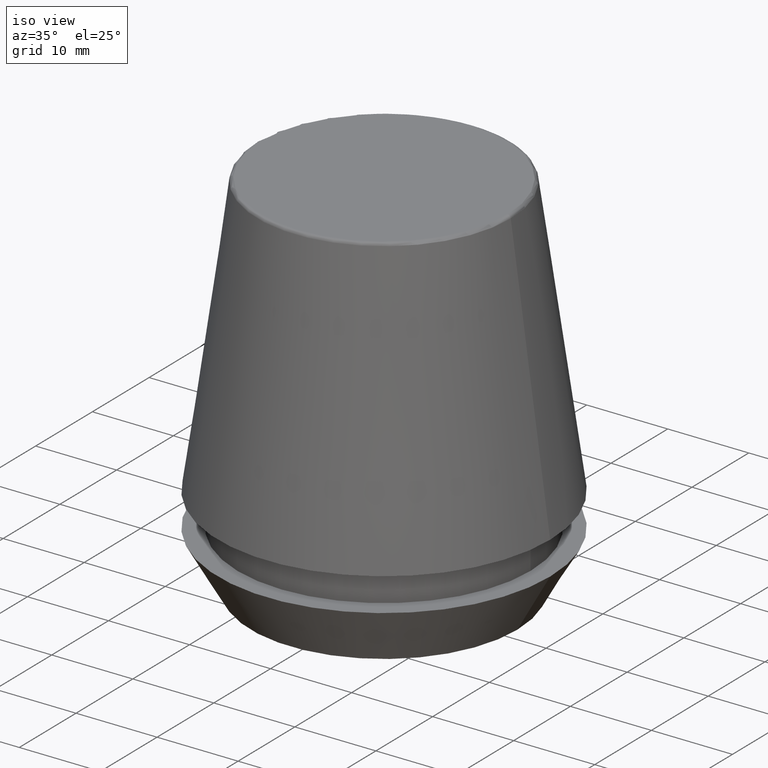
[diagram: clean part render]
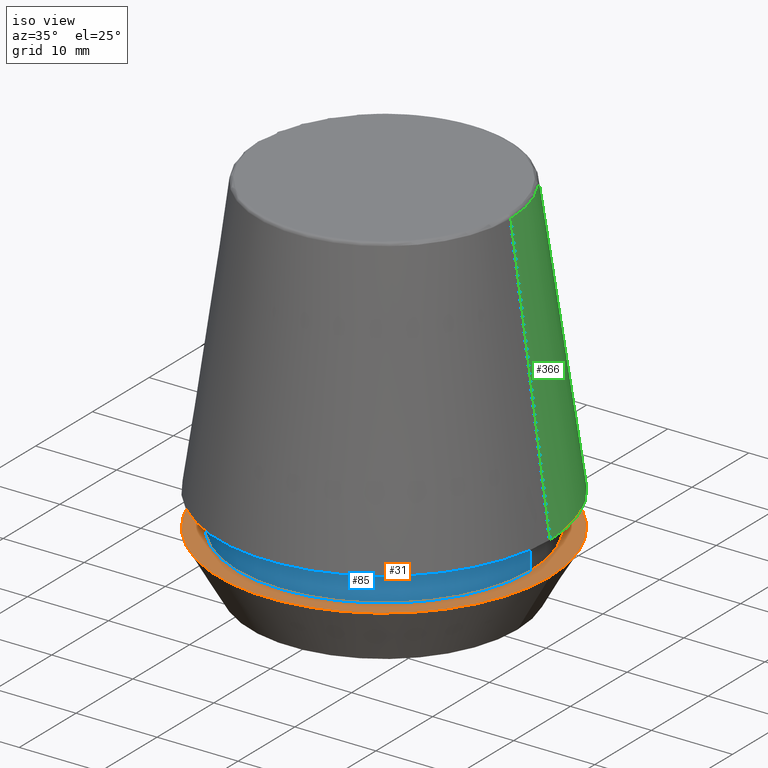
[diagram: same view with three faces highlighted in distinct colors, each labeled with its STEP entity id]
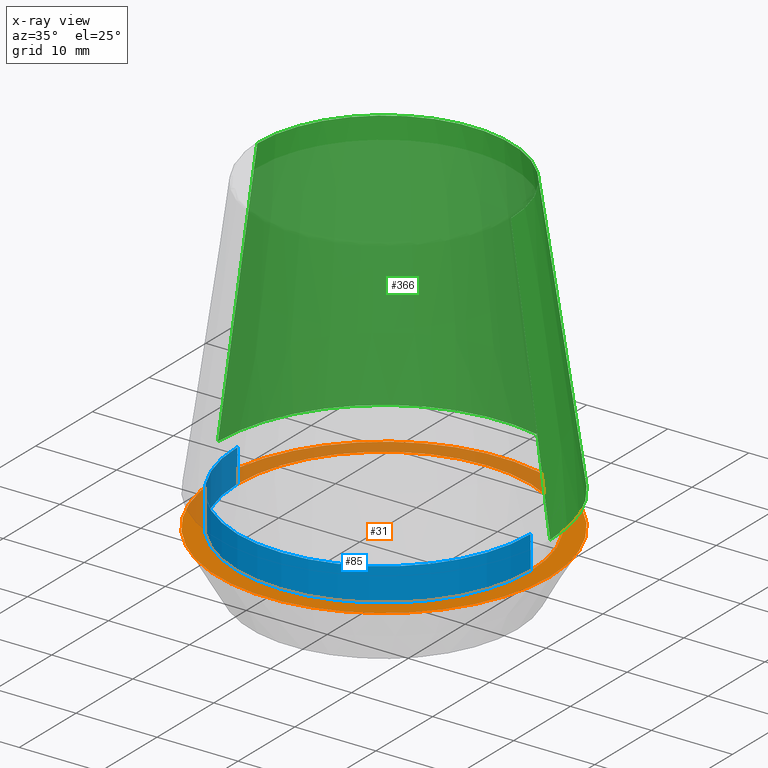
[diagram: x-ray of the same camera — body ghosted, the three highlighted faces saturated]
A machine part, iso view with three faces highlighted in distinct colors.
The next image is the same camera in x-ray (body ghosted, the three faces saturated) — at least one of them is partly hidden behind the body in this view.
Their STEP definitions:

[orange] entity #31 — the highlighted planar face has unit normal (0, 0, -1).
#6 = CIRCLE ( 'NONE', #50, 20.50000000000000000 ) ;
#18 = VERTEX_POINT ( 'NONE', #240 ) ;
#20 = DIRECTION ( 'NONE',  ( -1.000000000000000000, 0.0000000000000000000, -0.0000000000000000000 ) ) ;
#23 = AXIS2_PLACEMENT_3D ( 'NONE', #254, #378, #20 ) ;
#25 = DIRECTION ( 'NONE',  ( -0.0000000000000000000, -0.0000000000000000000, 1.000000000000000000 ) ) ;
#31 = ADVANCED_FACE ( 'NONE', ( #189, #213 ), #173, .F. ) ;
#34 = ORIENTED_EDGE ( 'NONE', *, *, #56, .T. ) ;
#41 = CARTESIAN_POINT ( 'NONE',  ( 0.0000000000000000000, 0.0000000000000000000, 6.999999999999999100 ) ) ;
#50 = AXIS2_PLACEMENT_3D ( 'NONE', #252, #92, #291 ) ;
#56 = EDGE_CURVE ( 'NONE', #80, #18, #6, .T. ) ;
#65 = ORIENTED_EDGE ( 'NONE', *, *, #257, .F. ) ;
#75 = DIRECTION ( 'NONE',  ( -0.0000000000000000000, -0.0000000000000000000, 1.000000000000000000 ) ) ;
#80 = VERTEX_POINT ( 'NONE', #375 ) ;
#88 = CARTESIAN_POINT ( 'NONE',  ( 0.0000000000000000000, 0.0000000000000000000, 6.999999999999999100 ) ) ;
#92 = DIRECTION ( 'NONE',  ( -0.0000000000000000000, -0.0000000000000000000, 1.000000000000000000 ) ) ;
#109 = VERTEX_POINT ( 'NONE', #335 ) ;
#111 = DIRECTION ( 'NONE',  ( 1.000000000000000000, 0.0000000000000000000, 0.0000000000000000000 ) ) ;
#116 = DIRECTION ( 'NONE',  ( -0.0000000000000000000, -0.0000000000000000000, 1.000000000000000000 ) ) ;
#157 = AXIS2_PLACEMENT_3D ( 'NONE', #88, #116, #333 ) ;
#173 = PLANE ( 'NONE',  #23 ) ;
#174 = ORIENTED_EDGE ( 'NONE', *, *, #303, .F. ) ;
#189 = FACE_BOUND ( 'NONE', #209, .T. ) ;
#192 = EDGE_LOOP ( 'NONE', ( #198, #34 ) ) ;
#193 = CARTESIAN_POINT ( 'NONE',  ( -18.10000000000000100, 2.216610706456709600E-015, 6.999999999999999100 ) ) ;
#197 = AXIS2_PLACEMENT_3D ( 'NONE', #41, #75, #270 ) ;
#198 = ORIENTED_EDGE ( 'NONE', *, *, #347, .T. ) ;
#209 = EDGE_LOOP ( 'NONE', ( #174, #65 ) ) ;
#213 = FACE_OUTER_BOUND ( 'NONE', #192, .T. ) ;
#217 = VERTEX_POINT ( 'NONE', #193 ) ;
#240 = CARTESIAN_POINT ( 'NONE',  ( 20.50000000000000000, 0.0000000000000000000, 7.000000000000006200 ) ) ;
#252 = CARTESIAN_POINT ( 'NONE',  ( 0.0000000000000000000, 0.0000000000000000000, 7.000000000000006200 ) ) ;
#254 = CARTESIAN_POINT ( 'NONE',  ( 0.0000000000000000000, 20.50000000000000000, 7.000000000000002700 ) ) ;
#257 = EDGE_CURVE ( 'NONE', #217, #109, #310, .T. ) ;
#270 = DIRECTION ( 'NONE',  ( 1.000000000000000000, 0.0000000000000000000, 0.0000000000000000000 ) ) ;
#291 = DIRECTION ( 'NONE',  ( 1.000000000000000000, 0.0000000000000000000, 0.0000000000000000000 ) ) ;
#303 = EDGE_CURVE ( 'NONE', #109, #217, #315, .T. ) ;
#310 = CIRCLE ( 'NONE', #157, 18.10000000000000100 ) ;
#315 = CIRCLE ( 'NONE', #197, 18.10000000000000100 ) ;
#317 = CIRCLE ( 'NONE', #334, 20.50000000000000000 ) ;
#333 = DIRECTION ( 'NONE',  ( 1.000000000000000000, 0.0000000000000000000, 0.0000000000000000000 ) ) ;
#334 = AXIS2_PLACEMENT_3D ( 'NONE', #367, #25, #111 ) ;
#335 = CARTESIAN_POINT ( 'NONE',  ( 18.10000000000000100, 0.0000000000000000000, 6.999999999999999100 ) ) ;
#347 = EDGE_CURVE ( 'NONE', #18, #80, #317, .T. ) ;
#367 = CARTESIAN_POINT ( 'NONE',  ( 0.0000000000000000000, 0.0000000000000000000, 7.000000000000006200 ) ) ;
#375 = CARTESIAN_POINT ( 'NONE',  ( -20.50000000000000000, 2.510525938252074100E-015, 7.000000000000006200 ) ) ;
#378 = DIRECTION ( 'NONE',  ( 0.0000000000000000000, 0.0000000000000000000, -1.000000000000000000 ) ) ;

[blue] entity #85 — the highlighted cylindrical surface (partial cylindrical patch) has radius 18.1 mm, axis along (-0, -0, 1).
#4 = ORIENTED_EDGE ( 'NONE', *, *, #201, .T. ) ;
#5 = DIRECTION ( 'NONE',  ( -0.0000000000000000000, -0.0000000000000000000, 1.000000000000000000 ) ) ;
#11 = CARTESIAN_POINT ( 'NONE',  ( 18.10000000000000500, 0.0000000000000000000, 46.00000000000000000 ) ) ;
#19 = CARTESIAN_POINT ( 'NONE',  ( 18.10000000000000500, 0.0000000000000000000, 11.09999999999999800 ) ) ;
#42 = VERTEX_POINT ( 'NONE', #19 ) ;
#48 = AXIS2_PLACEMENT_3D ( 'NONE', #169, #94, #202 ) ;
#85 = ADVANCED_FACE ( 'NONE', ( #104 ), #271, .T. ) ;
#88 = CARTESIAN_POINT ( 'NONE',  ( 0.0000000000000000000, 0.0000000000000000000, 6.999999999999999100 ) ) ;
#91 = EDGE_LOOP ( 'NONE', ( #244, #273, #4, #236 ) ) ;
#94 = DIRECTION ( 'NONE',  ( -0.0000000000000000000, -0.0000000000000000000, 1.000000000000000000 ) ) ;
#104 = FACE_OUTER_BOUND ( 'NONE', #91, .T. ) ;
#109 = VERTEX_POINT ( 'NONE', #335 ) ;
#116 = DIRECTION ( 'NONE',  ( -0.0000000000000000000, -0.0000000000000000000, 1.000000000000000000 ) ) ;
#148 = DIRECTION ( 'NONE',  ( 1.000000000000000000, 0.0000000000000000000, 0.0000000000000000000 ) ) ;
#152 = CARTESIAN_POINT ( 'NONE',  ( -18.10000000000000500, 2.216610706456710000E-015, 11.09999999999999800 ) ) ;
#157 = AXIS2_PLACEMENT_3D ( 'NONE', #88, #116, #333 ) ;
#158 = VERTEX_POINT ( 'NONE', #152 ) ;
#169 = CARTESIAN_POINT ( 'NONE',  ( 0.0000000000000000000, 0.0000000000000000000, 46.00000000000000000 ) ) ;
#176 = AXIS2_PLACEMENT_3D ( 'NONE', #232, #299, #148 ) ;
#193 = CARTESIAN_POINT ( 'NONE',  ( -18.10000000000000100, 2.216610706456709600E-015, 6.999999999999999100 ) ) ;
#195 = CARTESIAN_POINT ( 'NONE',  ( -18.10000000000000500, 2.216610706456710000E-015, 46.00000000000000000 ) ) ;
#201 = EDGE_CURVE ( 'NONE', #109, #42, #284, .T. ) ;
#202 = DIRECTION ( 'NONE',  ( 1.000000000000000000, 0.0000000000000000000, 0.0000000000000000000 ) ) ;
#217 = VERTEX_POINT ( 'NONE', #193 ) ;
#232 = CARTESIAN_POINT ( 'NONE',  ( 0.0000000000000000000, 0.0000000000000000000, 11.09999999999999800 ) ) ;
#236 = ORIENTED_EDGE ( 'NONE', *, *, #288, .F. ) ;
#244 = ORIENTED_EDGE ( 'NONE', *, *, #267, .F. ) ;
#246 = DIRECTION ( 'NONE',  ( -0.0000000000000000000, -0.0000000000000000000, 1.000000000000000000 ) ) ;
#257 = EDGE_CURVE ( 'NONE', #217, #109, #310, .T. ) ;
#267 = EDGE_CURVE ( 'NONE', #217, #158, #306, .T. ) ;
#271 = CYLINDRICAL_SURFACE ( 'NONE', #48, 18.10000000000000500 ) ;
#273 = ORIENTED_EDGE ( 'NONE', *, *, #257, .T. ) ;
#284 = LINE ( 'NONE', #11, #286 ) ;
#285 = CIRCLE ( 'NONE', #176, 18.10000000000000500 ) ;
#286 = VECTOR ( 'NONE', #246, 1000.000000000000000 ) ;
#288 = EDGE_CURVE ( 'NONE', #158, #42, #285, .T. ) ;
#299 = DIRECTION ( 'NONE',  ( -0.0000000000000000000, -0.0000000000000000000, 1.000000000000000000 ) ) ;
#306 = LINE ( 'NONE', #195, #313 ) ;
#310 = CIRCLE ( 'NONE', #157, 18.10000000000000100 ) ;
#313 = VECTOR ( 'NONE', #5, 1000.000000000000000 ) ;
#333 = DIRECTION ( 'NONE',  ( 1.000000000000000000, 0.0000000000000000000, 0.0000000000000000000 ) ) ;
#335 = CARTESIAN_POINT ( 'NONE',  ( 18.10000000000000100, 0.0000000000000000000, 6.999999999999999100 ) ) ;

[green] entity #366 — the highlighted conical surface has half-angle 8 deg.
#7 = VERTEX_POINT ( 'NONE', #344 ) ;
#8 = DIRECTION ( 'NONE',  ( 1.000000000000000000, 0.0000000000000000000, 0.0000000000000000000 ) ) ;
#13 = ORIENTED_EDGE ( 'NONE', *, *, #21, .T. ) ;
#16 = AXIS2_PLACEMENT_3D ( 'NONE', #133, #154, #8 ) ;
#21 = EDGE_CURVE ( 'NONE', #172, #119, #221, .T. ) ;
#27 = DIRECTION ( 'NONE',  ( 0.0000000000000000000, 0.0000000000000000000, -1.000000000000000000 ) ) ;
#36 = DIRECTION ( 'NONE',  ( 1.000000000000000000, 0.0000000000000000000, 0.0000000000000000000 ) ) ;
#38 = ORIENTED_EDGE ( 'NONE', *, *, #143, .F. ) ;
#44 = AXIS2_PLACEMENT_3D ( 'NONE', #142, #369, #36 ) ;
#106 = DIRECTION ( 'NONE',  ( 0.1391731009600587200, 1.704378926181473400E-017, -0.9902680687415712500 ) ) ;
#118 = CARTESIAN_POINT ( 'NONE',  ( -20.50032537154048700, 0.0000000000000000000, 11.09999999999999800 ) ) ;
#119 = VERTEX_POINT ( 'NONE', #287 ) ;
#127 = VERTEX_POINT ( 'NONE', #200 ) ;
#129 = EDGE_LOOP ( 'NONE', ( #38, #13, #386, #302 ) ) ;
#132 = CARTESIAN_POINT ( 'NONE',  ( 15.64384277279740400, 2.213191991290356800E-015, 45.65566924038402900 ) ) ;
#133 = CARTESIAN_POINT ( 'NONE',  ( 0.0000000000000000000, 0.0000000000000000000, 11.09999999999999800 ) ) ;
#139 = EDGE_CURVE ( 'NONE', #7, #127, #268, .T. ) ;
#142 = CARTESIAN_POINT ( 'NONE',  ( 0.0000000000000000000, 0.0000000000000000000, 45.65566924038402900 ) ) ;
#143 = EDGE_CURVE ( 'NONE', #172, #7, #281, .T. ) ;
#154 = DIRECTION ( 'NONE',  ( -0.0000000000000000000, -0.0000000000000000000, 1.000000000000000000 ) ) ;
#166 = CARTESIAN_POINT ( 'NONE',  ( 0.0000000000000000000, 0.0000000000000000000, 11.09999999999999800 ) ) ;
#172 = VERTEX_POINT ( 'NONE', #132 ) ;
#177 = DIRECTION ( 'NONE',  ( -1.000000000000000000, 0.0000000000000000000, 0.0000000000000000000 ) ) ;
#200 = CARTESIAN_POINT ( 'NONE',  ( -20.50032537154048700, 0.0000000000000000000, 11.09999999999999800 ) ) ;
#208 = VECTOR ( 'NONE', #106, 1000.000000000000000 ) ;
#211 = AXIS2_PLACEMENT_3D ( 'NONE', #166, #27, #177 ) ;
#221 = LINE ( 'NONE', #234, #208 ) ;
#230 = DIRECTION ( 'NONE',  ( -0.1391731009600587200, 0.0000000000000000000, -0.9902680687415712500 ) ) ;
#234 = CARTESIAN_POINT ( 'NONE',  ( 20.50032537154048700, 2.510565784773633700E-015, 11.09999999999999800 ) ) ;
#237 = EDGE_CURVE ( 'NONE', #119, #127, #301, .T. ) ;
#268 = LINE ( 'NONE', #118, #283 ) ;
#281 = CIRCLE ( 'NONE', #44, 15.64384277279740400 ) ;
#283 = VECTOR ( 'NONE', #230, 1000.000000000000000 ) ;
#287 = CARTESIAN_POINT ( 'NONE',  ( 20.50032537154048700, 2.510565784773633700E-015, 11.09999999999999800 ) ) ;
#301 = CIRCLE ( 'NONE', #16, 20.50032537154048700 ) ;
#302 = ORIENTED_EDGE ( 'NONE', *, *, #139, .F. ) ;
#319 = FACE_OUTER_BOUND ( 'NONE', #129, .T. ) ;
#340 = CONICAL_SURFACE ( 'NONE', #211, 20.50032537154048700, 0.1396263401595396200 ) ;
#344 = CARTESIAN_POINT ( 'NONE',  ( -15.64384277279740400, 0.0000000000000000000, 45.65566924038402900 ) ) ;
#366 = ADVANCED_FACE ( 'NONE', ( #319 ), #340, .T. ) ;
#369 = DIRECTION ( 'NONE',  ( -0.0000000000000000000, -0.0000000000000000000, 1.000000000000000000 ) ) ;
#386 = ORIENTED_EDGE ( 'NONE', *, *, #237, .T. ) ;